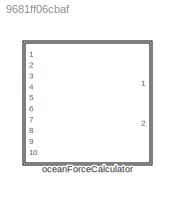
MODEL slx_9681ff06cbaf
KIND library
CONFIG AbsTol = auto
CONFIG EnableMultiTasking = off
CONFIG FixedStep = auto
CONFIG MaxStep = auto
CONFIG MinStep = auto
CONFIG RelTol = 1e-3
CONFIG SampleTimeConstraint = Unconstrained
CONFIG Solver = VariableStepAuto
CONFIG SolverName = VariableStepAuto
CONFIG StartTime = 0.0
CONFIG StopTime = 10.0
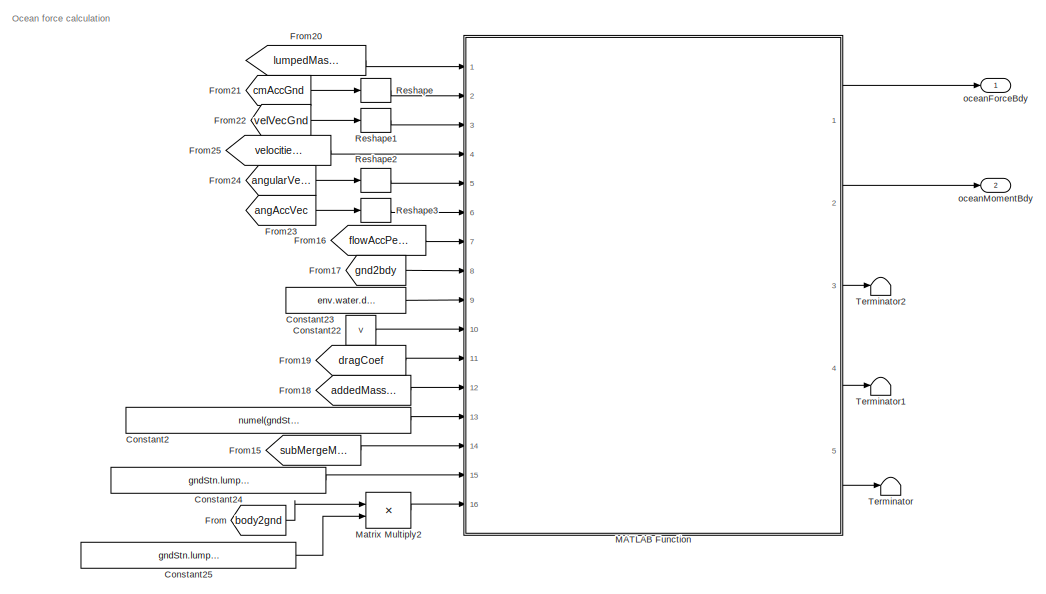
[diagram: oceanForceCalculator - part 1/3, top right region]
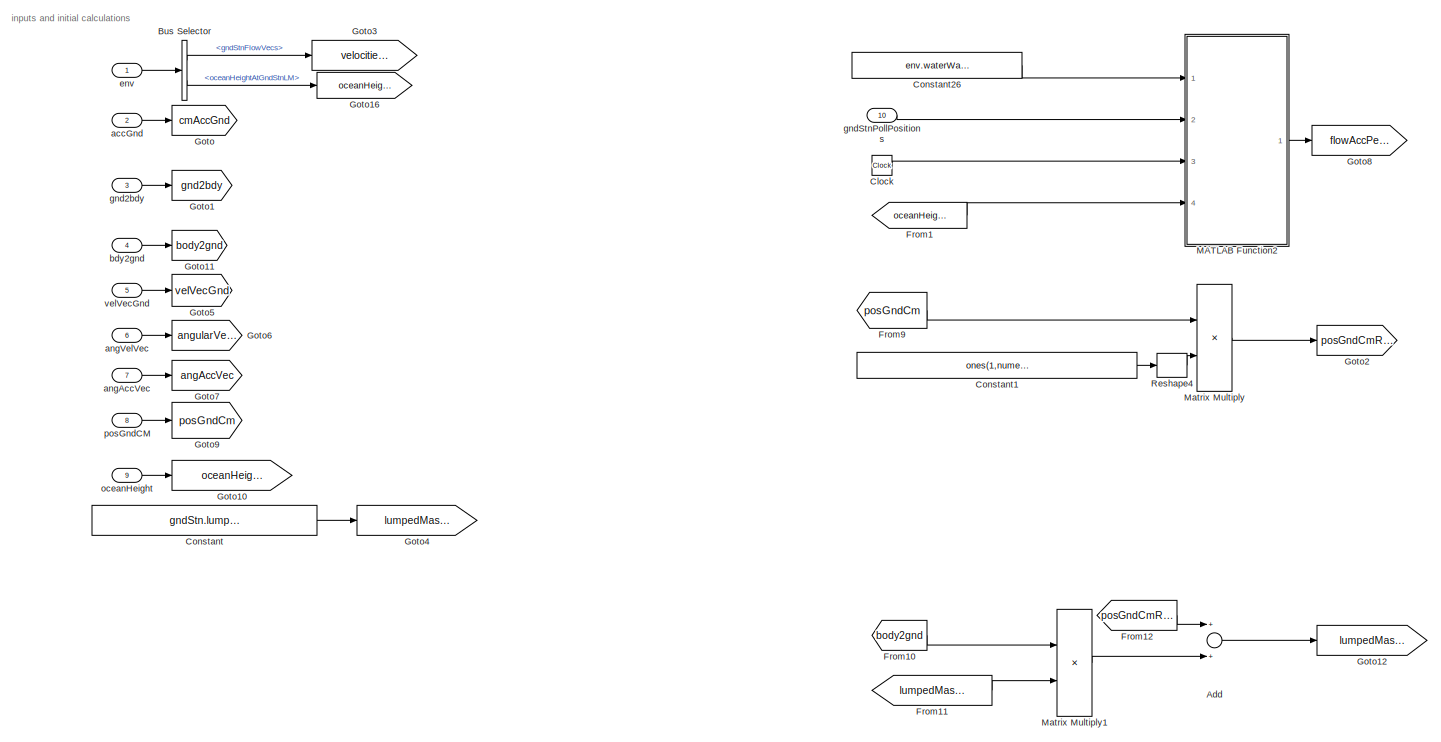
[diagram: oceanForceCalculator - part 2/3, middle left region]
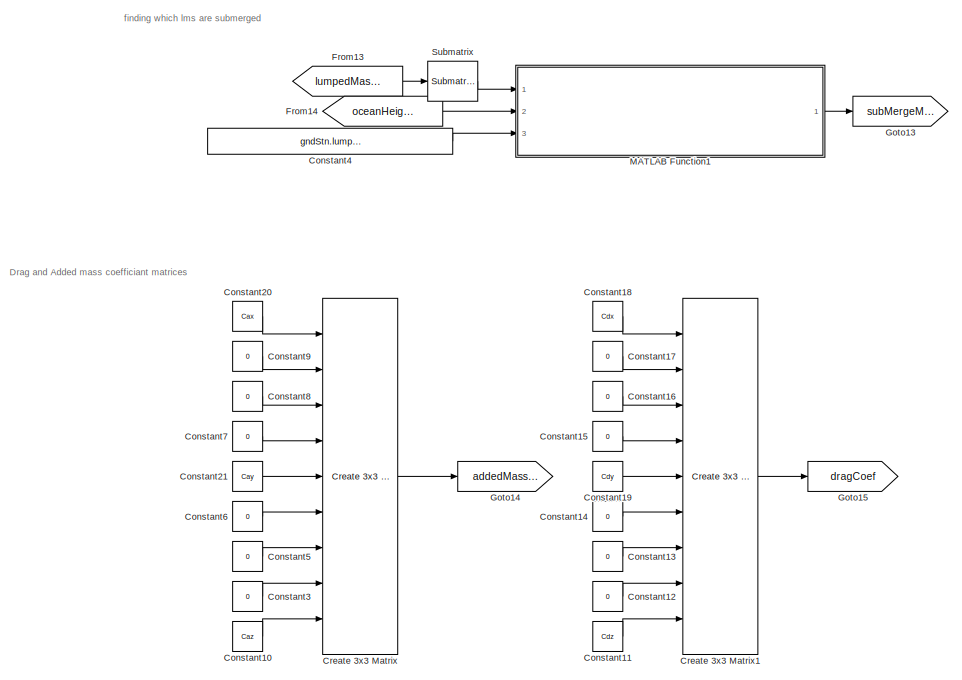
[diagram: oceanForceCalculator - part 3/3, bottom right region]
BLOCK [SubSystem] oceanForceCalculator
  Ports = [10, 2]
  RequestExecContextInheritance = off
BLOCK [Sum] oceanForceCalculator/Add
  InputSameDT = off
  OutDataTypeStr = Inherit: Inherit via internal rule
  Ports = [2, 1]
  SaturateOnIntegerOverflow = off
BLOCK [BusSelector] oceanForceCalculator/Bus Selector
  OutputAsBus = off
  OutputSignals = gndStnFlowVecs,oceanHeightAtGndStnLM
  Ports = [1, 2]
BLOCK [Clock] oceanForceCalculator/Clock
BLOCK [Constant] oceanForceCalculator/Constant
  Value = gndStn.lumpedMassPositionMatrixBdy.Value
BLOCK [Constant] oceanForceCalculator/Constant1
  Value = ones(1,numel(gndStn.lumpedMassPositionMatrixBdy.Value)/3)
BLOCK [Constant] oceanForceCalculator/Constant10
  Value = Caz
BLOCK [Constant] oceanForceCalculator/Constant11
  Value = Cdz
BLOCK [Constant] oceanForceCalculator/Constant12
  Value = 0
BLOCK [Constant] oceanForceCalculator/Constant13
  Value = 0
BLOCK [Constant] oceanForceCalculator/Constant14
  Value = 0
BLOCK [Constant] oceanForceCalculator/Constant15
  Value = 0
BLOCK [Constant] oceanForceCalculator/Constant16
  Value = 0
BLOCK [Constant] oceanForceCalculator/Constant17
  Value = 0
BLOCK [Constant] oceanForceCalculator/Constant18
  Value = Cdx
BLOCK [Constant] oceanForceCalculator/Constant19
  Value = Cdy
BLOCK [Constant] oceanForceCalculator/Constant2
  Value = numel(gndStn.lumpedMassPositionMatrixBdy.Value)/3
BLOCK [Constant] oceanForceCalculator/Constant20
  Value = Cax
BLOCK [Constant] oceanForceCalculator/Constant21
  Value = Cay
BLOCK [Constant] oceanForceCalculator/Constant22
  Value = V
BLOCK [Constant] oceanForceCalculator/Constant23
  Value = env.water.density.Value
BLOCK [Constant] oceanForceCalculator/Constant24
  Value = gndStn.lumpedMassAreaMat.Value
BLOCK [Constant] oceanForceCalculator/Constant25
  Value = gndStn.lumpedMassNormalVecMat.Value
BLOCK [Constant] oceanForceCalculator/Constant26
  Value = env.waterWave.waveParamMat.Value
BLOCK [Constant] oceanForceCalculator/Constant3
  Value = 0
BLOCK [Constant] oceanForceCalculator/Constant4
  Value = gndStn.lumpedMassSphereRadius.Value
BLOCK [Constant] oceanForceCalculator/Constant5
  Value = 0
BLOCK [Constant] oceanForceCalculator/Constant6
  Value = 0
BLOCK [Constant] oceanForceCalculator/Constant7
  Value = 0
BLOCK [Constant] oceanForceCalculator/Constant8
  Value = 0
BLOCK [Constant] oceanForceCalculator/Constant9
  Value = 0
BLOCK [Reference] oceanForceCalculator/Create 3x3 Matrix  REF=sharedutil/Create 3x3 Matrix
  Ports = [9, 1]
  SourceBlock = sharedutil/Create 3x3 Matrix
  SourceProductBaseCode = AE
  SourceProductName = Aerospace Blockset
  SourceType = Create 3x3 Matrix
BLOCK [Reference] oceanForceCalculator/Create 3x3 Matrix1  REF=sharedutil/Create 3x3 Matrix
  Ports = [9, 1]
  SourceBlock = sharedutil/Create 3x3 Matrix
  SourceProductBaseCode = AE
  SourceProductName = Aerospace Blockset
  SourceType = Create 3x3 Matrix
BLOCK [From] oceanForceCalculator/From
  GotoTag = body2gnd
BLOCK [From] oceanForceCalculator/From1
  GotoTag = oceanHeight
BLOCK [From] oceanForceCalculator/From10
  GotoTag = body2gnd
BLOCK [From] oceanForceCalculator/From11
  GotoTag = lumpedMassPosBdy
BLOCK [From] oceanForceCalculator/From12
  GotoTag = posGndCmRep
BLOCK [From] oceanForceCalculator/From13
  GotoTag = lumpedMassPosGnd
BLOCK [From] oceanForceCalculator/From14
  GotoTag = oceanHeightPosition
BLOCK [From] oceanForceCalculator/From15
  GotoTag = subMergeMat
BLOCK [From] oceanForceCalculator/From16
  GotoTag = flowAccPerLM
BLOCK [From] oceanForceCalculator/From17
  GotoTag = gnd2bdy
BLOCK [From] oceanForceCalculator/From18
  GotoTag = addedMassCoef
BLOCK [From] oceanForceCalculator/From19
  GotoTag = dragCoef
BLOCK [From] oceanForceCalculator/From20
  GotoTag = lumpedMassPosBdy
BLOCK [From] oceanForceCalculator/From21
  GotoTag = cmAccGnd
BLOCK [From] oceanForceCalculator/From22
  GotoTag = velVecGnd
BLOCK [From] oceanForceCalculator/From23
  GotoTag = angAccVec
BLOCK [From] oceanForceCalculator/From24
  GotoTag = angularVelVec
BLOCK [From] oceanForceCalculator/From25
  GotoTag = velocitiesEachLM
BLOCK [From] oceanForceCalculator/From9
  GotoTag = posGndCm
BLOCK [Goto] oceanForceCalculator/Goto
  GotoTag = cmAccGnd
BLOCK [Goto] oceanForceCalculator/Goto1
  GotoTag = gnd2bdy
BLOCK [Goto] oceanForceCalculator/Goto10
  GotoTag = oceanHeightPosition
BLOCK [Goto] oceanForceCalculator/Goto11
  GotoTag = body2gnd
BLOCK [Goto] oceanForceCalculator/Goto12
  GotoTag = lumpedMassPosGnd
BLOCK [Goto] oceanForceCalculator/Goto13
  GotoTag = subMergeMat
BLOCK [Goto] oceanForceCalculator/Goto14
  GotoTag = addedMassCoef
BLOCK [Goto] oceanForceCalculator/Goto15
  GotoTag = dragCoef
BLOCK [Goto] oceanForceCalculator/Goto16
  GotoTag = oceanHeight
BLOCK [Goto] oceanForceCalculator/Goto2
  GotoTag = posGndCmRep
BLOCK [Goto] oceanForceCalculator/Goto3
  GotoTag = velocitiesEachLM
BLOCK [Goto] oceanForceCalculator/Goto4
  GotoTag = lumpedMassPosBdy
BLOCK [Goto] oceanForceCalculator/Goto5
  GotoTag = velVecGnd
BLOCK [Goto] oceanForceCalculator/Goto6
  GotoTag = angularVelVec
BLOCK [Goto] oceanForceCalculator/Goto7
  GotoTag = angAccVec
BLOCK [Goto] oceanForceCalculator/Goto8
  GotoTag = flowAccPerLM
BLOCK [Goto] oceanForceCalculator/Goto9
  GotoTag = posGndCm
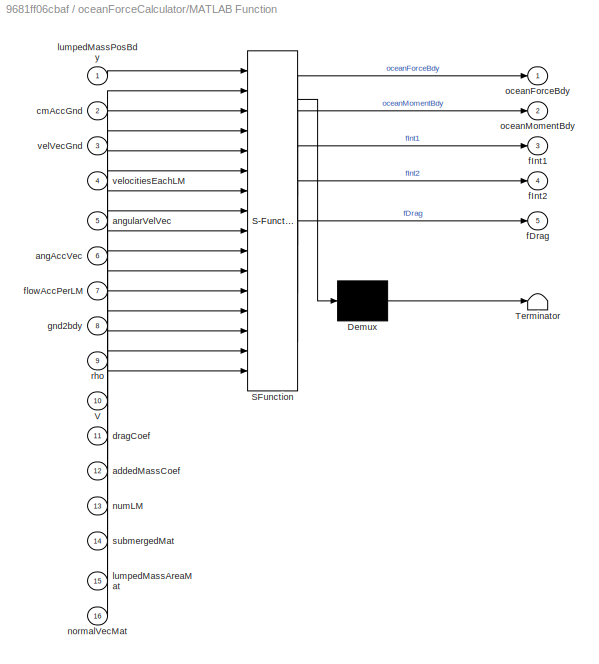
BLOCK [SubSystem] oceanForceCalculator/MATLAB Function
  ErrorFcn = Stateflow.Translate.translate
  PermitHierarchicalResolution = ExplicitOnly
  Ports = [16, 5]
  RequestExecContextInheritance = off
  SFBlockType = MATLAB Function
  TreatAsAtomicUnit = on
BLOCK [Demux] oceanForceCalculator/MATLAB Function/ Demux 
  Outputs = 1
  Ports = [1, 1]
BLOCK [S-Function] oceanForceCalculator/MATLAB Function/ SFunction 
  EnableBusSupport = off
  FunctionName = sf_sfun
  PortCounts = [16 6]
  Ports = [16, 6]
  SFcnIsStateOwnerBlock = off
  SFunctionDeploymentMode = off
  Tag = Stateflow S-Function oceanForceCalculator_ul 2
BLOCK [Terminator] oceanForceCalculator/MATLAB Function/ Terminator 
BLOCK [Inport] oceanForceCalculator/MATLAB Function/V
  IconDisplay = Port number
  Port = 10
BLOCK [Inport] oceanForceCalculator/MATLAB Function/addedMassCoef
  IconDisplay = Port number
  Port = 12
BLOCK [Inport] oceanForceCalculator/MATLAB Function/angAccVec
  IconDisplay = Port number
  Port = 6
BLOCK [Inport] oceanForceCalculator/MATLAB Function/angularVelVec
  IconDisplay = Port number
  Port = 5
BLOCK [Inport] oceanForceCalculator/MATLAB Function/cmAccGnd
  IconDisplay = Port number
  Port = 2
BLOCK [Inport] oceanForceCalculator/MATLAB Function/dragCoef
  IconDisplay = Port number
  Port = 11
BLOCK [Outport] oceanForceCalculator/MATLAB Function/fDrag
  IconDisplay = Port number
  Port = 5
BLOCK [Outport] oceanForceCalculator/MATLAB Function/fInt1
  IconDisplay = Port number
  Port = 3
BLOCK [Outport] oceanForceCalculator/MATLAB Function/fInt2
  IconDisplay = Port number
  Port = 4
BLOCK [Inport] oceanForceCalculator/MATLAB Function/flowAccPerLM
  IconDisplay = Port number
  Port = 7
BLOCK [Inport] oceanForceCalculator/MATLAB Function/gnd2bdy
  IconDisplay = Port number
  Port = 8
BLOCK [Inport] oceanForceCalculator/MATLAB Function/lumpedMassAreaMat
  IconDisplay = Port number
  Port = 15
BLOCK [Inport] oceanForceCalculator/MATLAB Function/lumpedMassPosBdy
  IconDisplay = Port number
BLOCK [Inport] oceanForceCalculator/MATLAB Function/normalVecMat
  IconDisplay = Port number
  Port = 16
BLOCK [Inport] oceanForceCalculator/MATLAB Function/numLM
  IconDisplay = Port number
  Port = 13
BLOCK [Outport] oceanForceCalculator/MATLAB Function/oceanForceBdy
  IconDisplay = Port number
BLOCK [Outport] oceanForceCalculator/MATLAB Function/oceanMomentBdy
  IconDisplay = Port number
  Port = 2
BLOCK [Inport] oceanForceCalculator/MATLAB Function/rho
  IconDisplay = Port number
  Port = 9
BLOCK [Inport] oceanForceCalculator/MATLAB Function/submergedMat
  IconDisplay = Port number
  Port = 14
BLOCK [Inport] oceanForceCalculator/MATLAB Function/velVecGnd
  IconDisplay = Port number
  Port = 3
BLOCK [Inport] oceanForceCalculator/MATLAB Function/velocitiesEachLM
  IconDisplay = Port number
  Port = 4
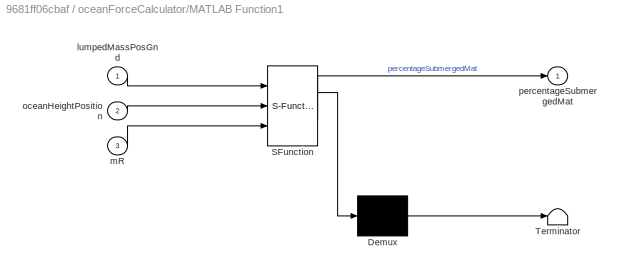
BLOCK [SubSystem] oceanForceCalculator/MATLAB Function1
  ErrorFcn = Stateflow.Translate.translate
  PermitHierarchicalResolution = ExplicitOnly
  Ports = [3, 1]
  RequestExecContextInheritance = off
  SFBlockType = MATLAB Function
  TreatAsAtomicUnit = on
BLOCK [Demux] oceanForceCalculator/MATLAB Function1/ Demux 
  Outputs = 1
  Ports = [1, 1]
BLOCK [S-Function] oceanForceCalculator/MATLAB Function1/ SFunction 
  EnableBusSupport = off
  FunctionName = sf_sfun
  PortCounts = [3 2]
  Ports = [3, 2]
  SFcnIsStateOwnerBlock = off
  SFunctionDeploymentMode = off
  Tag = Stateflow S-Function oceanForceCalculator_ul 1
BLOCK [Terminator] oceanForceCalculator/MATLAB Function1/ Terminator 
BLOCK [Inport] oceanForceCalculator/MATLAB Function1/lumpedMassPosGnd
  IconDisplay = Port number
BLOCK [Inport] oceanForceCalculator/MATLAB Function1/mR
  IconDisplay = Port number
  Port = 3
BLOCK [Inport] oceanForceCalculator/MATLAB Function1/oceanHeightPosition
  IconDisplay = Port number
  Port = 2
BLOCK [Outport] oceanForceCalculator/MATLAB Function1/percentageSubmergedMat
  IconDisplay = Port number
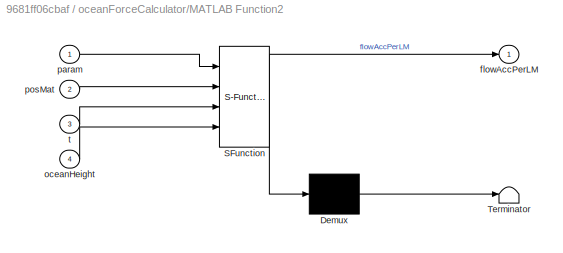
BLOCK [SubSystem] oceanForceCalculator/MATLAB Function2
  ErrorFcn = Stateflow.Translate.translate
  PermitHierarchicalResolution = ExplicitOnly
  Ports = [4, 1]
  RequestExecContextInheritance = off
  SFBlockType = MATLAB Function
  TreatAsAtomicUnit = on
BLOCK [Demux] oceanForceCalculator/MATLAB Function2/ Demux 
  Outputs = 1
  Ports = [1, 1]
BLOCK [S-Function] oceanForceCalculator/MATLAB Function2/ SFunction 
  EnableBusSupport = off
  FunctionName = sf_sfun
  PortCounts = [4 2]
  Ports = [4, 2]
  SFcnIsStateOwnerBlock = off
  SFunctionDeploymentMode = off
  Tag = Stateflow S-Function oceanForceCalculator_ul 3
BLOCK [Terminator] oceanForceCalculator/MATLAB Function2/ Terminator 
BLOCK [Outport] oceanForceCalculator/MATLAB Function2/flowAccPerLM
  IconDisplay = Port number
BLOCK [Inport] oceanForceCalculator/MATLAB Function2/oceanHeight
  IconDisplay = Port number
  Port = 4
BLOCK [Inport] oceanForceCalculator/MATLAB Function2/param
  IconDisplay = Port number
BLOCK [Inport] oceanForceCalculator/MATLAB Function2/posMat
  IconDisplay = Port number
  Port = 2
BLOCK [Inport] oceanForceCalculator/MATLAB Function2/t
  IconDisplay = Port number
  Port = 3
BLOCK [Product] oceanForceCalculator/Matrix Multiply
  InputSameDT = off
  Multiplication = Matrix(*)
  OutDataTypeStr = Inherit: Inherit via internal rule
  Ports = [2, 1]
  RndMeth = Floor
  SaturateOnIntegerOverflow = off
BLOCK [Product] oceanForceCalculator/Matrix Multiply1
  InputSameDT = off
  Multiplication = Matrix(*)
  OutDataTypeStr = Inherit: Inherit via internal rule
  Ports = [2, 1]
  RndMeth = Floor
  SaturateOnIntegerOverflow = off
BLOCK [Product] oceanForceCalculator/Matrix Multiply2
  InputSameDT = off
  Multiplication = Matrix(*)
  OutDataTypeStr = Inherit: Inherit via internal rule
  Ports = [2, 1]
  RndMeth = Floor
  SaturateOnIntegerOverflow = off
BLOCK [Reshape] oceanForceCalculator/Reshape
  OutputDimensionality = Column vector (2-D)
  Ports = [1, 1]
BLOCK [Reshape] oceanForceCalculator/Reshape1
  OutputDimensionality = Column vector (2-D)
  Ports = [1, 1]
BLOCK [Reshape] oceanForceCalculator/Reshape2
  OutputDimensionality = Column vector (2-D)
  Ports = [1, 1]
BLOCK [Reshape] oceanForceCalculator/Reshape3
  OutputDimensionality = Column vector (2-D)
  Ports = [1, 1]
BLOCK [Reshape] oceanForceCalculator/Reshape4
  OutputDimensionality = Row vector (2-D)
  Ports = [1, 1]
BLOCK [Reference] oceanForceCalculator/Submatrix  REF=dspmtrx3/Submatrix
  Ports = [1, 1]
  SourceBlock = dspmtrx3/Submatrix
  SourceProductBaseCode = DS
  SourceProductName = DSP System Toolbox
  SourceType = Submatrix
BLOCK [Terminator] oceanForceCalculator/Terminator
BLOCK [Terminator] oceanForceCalculator/Terminator1
BLOCK [Terminator] oceanForceCalculator/Terminator2
BLOCK [Inport] oceanForceCalculator/accGnd
  IconDisplay = Port number
  Port = 2
BLOCK [Inport] oceanForceCalculator/angAccVec
  IconDisplay = Port number
  Port = 7
BLOCK [Inport] oceanForceCalculator/angVelVec
  IconDisplay = Port number
  Port = 6
BLOCK [Inport] oceanForceCalculator/bdy2gnd
  IconDisplay = Port number
  Port = 4
BLOCK [Inport] oceanForceCalculator/env
  IconDisplay = Port number
BLOCK [Inport] oceanForceCalculator/gnd2bdy
  IconDisplay = Port number
  Port = 3
BLOCK [Inport] oceanForceCalculator/gndStnPollPositions
  IconDisplay = Port number
  Port = 10
BLOCK [Outport] oceanForceCalculator/oceanForceBdy
  IconDisplay = Port number
BLOCK [Inport] oceanForceCalculator/oceanHeight
  IconDisplay = Port number
  Port = 9
BLOCK [Outport] oceanForceCalculator/oceanMomentBdy
  IconDisplay = Port number
  Port = 2
BLOCK [Inport] oceanForceCalculator/posGndCM
  IconDisplay = Port number
  Port = 8
BLOCK [Inport] oceanForceCalculator/velVecGnd
  IconDisplay = Port number
  Port = 5
ANNOTATION oceanForceCalculator: Drag and Added mass coefficiant matrices
ANNOTATION oceanForceCalculator: Ocean force calculation
ANNOTATION oceanForceCalculator: finding which lms are submerged
ANNOTATION oceanForceCalculator: inputs and initial calculations
LINE oceanForceCalculator/Add:1 -> oceanForceCalculator/Goto12:1
LINE oceanForceCalculator/Bus Selector:1 -> oceanForceCalculator/Goto3:1
LINE oceanForceCalculator/Bus Selector:2 -> oceanForceCalculator/Goto16:1
LINE oceanForceCalculator/Clock:1 -> oceanForceCalculator/MATLAB Function2:3
LINE oceanForceCalculator/Constant10:1 -> oceanForceCalculator/Create 3x3 Matrix:9
LINE oceanForceCalculator/Constant11:1 -> oceanForceCalculator/Create 3x3 Matrix1:9
LINE oceanForceCalculator/Constant12:1 -> oceanForceCalculator/Create 3x3 Matrix1:8
LINE oceanForceCalculator/Constant13:1 -> oceanForceCalculator/Create 3x3 Matrix1:7
LINE oceanForceCalculator/Constant14:1 -> oceanForceCalculator/Create 3x3 Matrix1:6
LINE oceanForceCalculator/Constant15:1 -> oceanForceCalculator/Create 3x3 Matrix1:4
LINE oceanForceCalculator/Constant16:1 -> oceanForceCalculator/Create 3x3 Matrix1:3
LINE oceanForceCalculator/Constant17:1 -> oceanForceCalculator/Create 3x3 Matrix1:2
LINE oceanForceCalculator/Constant18:1 -> oceanForceCalculator/Create 3x3 Matrix1:1
LINE oceanForceCalculator/Constant19:1 -> oceanForceCalculator/Create 3x3 Matrix1:5
LINE oceanForceCalculator/Constant1:1 -> oceanForceCalculator/Reshape4:1
LINE oceanForceCalculator/Constant20:1 -> oceanForceCalculator/Create 3x3 Matrix:1
LINE oceanForceCalculator/Constant21:1 -> oceanForceCalculator/Create 3x3 Matrix:5
LINE oceanForceCalculator/Constant22:1 -> oceanForceCalculator/MATLAB Function:10
LINE oceanForceCalculator/Constant23:1 -> oceanForceCalculator/MATLAB Function:9
LINE oceanForceCalculator/Constant24:1 -> oceanForceCalculator/MATLAB Function:15
LINE oceanForceCalculator/Constant25:1 -> oceanForceCalculator/Matrix Multiply2:2
LINE oceanForceCalculator/Constant26:1 -> oceanForceCalculator/MATLAB Function2:1
LINE oceanForceCalculator/Constant2:1 -> oceanForceCalculator/MATLAB Function:13
LINE oceanForceCalculator/Constant3:1 -> oceanForceCalculator/Create 3x3 Matrix:8
LINE oceanForceCalculator/Constant4:1 -> oceanForceCalculator/MATLAB Function1:3
LINE oceanForceCalculator/Constant5:1 -> oceanForceCalculator/Create 3x3 Matrix:7
LINE oceanForceCalculator/Constant6:1 -> oceanForceCalculator/Create 3x3 Matrix:6
LINE oceanForceCalculator/Constant7:1 -> oceanForceCalculator/Create 3x3 Matrix:4
LINE oceanForceCalculator/Constant8:1 -> oceanForceCalculator/Create 3x3 Matrix:3
LINE oceanForceCalculator/Constant9:1 -> oceanForceCalculator/Create 3x3 Matrix:2
LINE oceanForceCalculator/Constant:1 -> oceanForceCalculator/Goto4:1
LINE oceanForceCalculator/Create 3x3 Matrix1:1 -> oceanForceCalculator/Goto15:1
LINE oceanForceCalculator/Create 3x3 Matrix:1 -> oceanForceCalculator/Goto14:1
LINE oceanForceCalculator/From10:1 -> oceanForceCalculator/Matrix Multiply1:1
LINE oceanForceCalculator/From11:1 -> oceanForceCalculator/Matrix Multiply1:2
LINE oceanForceCalculator/From12:1 -> oceanForceCalculator/Add:1
LINE oceanForceCalculator/From13:1 -> oceanForceCalculator/Submatrix:1
LINE oceanForceCalculator/From14:1 -> oceanForceCalculator/MATLAB Function1:2
LINE oceanForceCalculator/From15:1 -> oceanForceCalculator/MATLAB Function:14
LINE oceanForceCalculator/From16:1 -> oceanForceCalculator/MATLAB Function:7
LINE oceanForceCalculator/From17:1 -> oceanForceCalculator/MATLAB Function:8
LINE oceanForceCalculator/From18:1 -> oceanForceCalculator/MATLAB Function:12
LINE oceanForceCalculator/From19:1 -> oceanForceCalculator/MATLAB Function:11
LINE oceanForceCalculator/From1:1 -> oceanForceCalculator/MATLAB Function2:4
LINE oceanForceCalculator/From20:1 -> oceanForceCalculator/MATLAB Function:1
LINE oceanForceCalculator/From21:1 -> oceanForceCalculator/Reshape:1
LINE oceanForceCalculator/From22:1 -> oceanForceCalculator/Reshape1:1
LINE oceanForceCalculator/From23:1 -> oceanForceCalculator/Reshape3:1
LINE oceanForceCalculator/From24:1 -> oceanForceCalculator/Reshape2:1
LINE oceanForceCalculator/From25:1 -> oceanForceCalculator/MATLAB Function:4
LINE oceanForceCalculator/From9:1 -> oceanForceCalculator/Matrix Multiply:1
LINE oceanForceCalculator/From:1 -> oceanForceCalculator/Matrix Multiply2:1
LINE oceanForceCalculator/MATLAB Function1:1 -> oceanForceCalculator/Goto13:1
LINE oceanForceCalculator/MATLAB Function2:1 -> oceanForceCalculator/Goto8:1
LINE oceanForceCalculator/MATLAB Function:1 -> oceanForceCalculator/oceanForceBdy:1
LINE oceanForceCalculator/MATLAB Function:2 -> oceanForceCalculator/oceanMomentBdy:1
LINE oceanForceCalculator/MATLAB Function:3 -> oceanForceCalculator/Terminator2:1
LINE oceanForceCalculator/MATLAB Function:4 -> oceanForceCalculator/Terminator1:1
LINE oceanForceCalculator/MATLAB Function:5 -> oceanForceCalculator/Terminator:1
LINE oceanForceCalculator/Matrix Multiply1:1 -> oceanForceCalculator/Add:2
LINE oceanForceCalculator/Matrix Multiply2:1 -> oceanForceCalculator/MATLAB Function:16
LINE oceanForceCalculator/Matrix Multiply:1 -> oceanForceCalculator/Goto2:1
LINE oceanForceCalculator/Reshape1:1 -> oceanForceCalculator/MATLAB Function:3
LINE oceanForceCalculator/Reshape2:1 -> oceanForceCalculator/MATLAB Function:5
LINE oceanForceCalculator/Reshape3:1 -> oceanForceCalculator/MATLAB Function:6
LINE oceanForceCalculator/Reshape4:1 -> oceanForceCalculator/Matrix Multiply:2
LINE oceanForceCalculator/Reshape:1 -> oceanForceCalculator/MATLAB Function:2
LINE oceanForceCalculator/Submatrix:1 -> oceanForceCalculator/MATLAB Function1:1
LINE oceanForceCalculator/accGnd:1 -> oceanForceCalculator/Goto:1
LINE oceanForceCalculator/angAccVec:1 -> oceanForceCalculator/Goto7:1
LINE oceanForceCalculator/angVelVec:1 -> oceanForceCalculator/Goto6:1
LINE oceanForceCalculator/bdy2gnd:1 -> oceanForceCalculator/Goto11:1
LINE oceanForceCalculator/env:1 -> oceanForceCalculator/Bus Selector:1
LINE oceanForceCalculator/gnd2bdy:1 -> oceanForceCalculator/Goto1:1
LINE oceanForceCalculator/gndStnPollPositions:1 -> oceanForceCalculator/MATLAB Function2:2
LINE oceanForceCalculator/oceanHeight:1 -> oceanForceCalculator/Goto10:1
LINE oceanForceCalculator/posGndCM:1 -> oceanForceCalculator/Goto9:1
LINE oceanForceCalculator/velVecGnd:1 -> oceanForceCalculator/Goto5:1
CHART oceanForceCalculator/MATLAB Function1 states=1 transitions=1
  STATE_LABEL 'eML_blk_kernel()'
  STATE_LABEL 'SCRIPT:\nfunction percentageSubmergedMat  = fcn(lumpedMassPosGnd,oceanHeightPosition,mR)\n\n%lumped Mass pos gnd is 3 by number of lumped masses\n\nsz = size(lumpedMassPosGnd);\npercentageSubmergedMat = zeros(1,sz(2));\nmatCat = [];\n\nfor i = sz(2):-1:1\n    \n    dist2surf = oceanHeightPosition(i) - lumpedMassPosGnd(:,i);\n   \n    \n    \n    if dist2surf >= mR\n        \n        percentSub = 1;\n    elseif dist...<+221ch>'
CHART oceanForceCalculator/MATLAB Function states=1 transitions=1
  STATE_LABEL 'eML_blk_kernel()'
  STATE_LABEL 'SCRIPT:\nfunction [oceanForceBdy,oceanMomentBdy,fInt1,fInt2,fDrag] = fcn(lumpedMassPosBdy,cmAccGnd,velVecGnd,velocitiesEachLM,angularVelVec,angAccVec,...\n    flowAccPerLM,gnd2bdy,rho,V,dragCoef,addedMassCoef,numLM,submergedMat,lumpedMassAreaMat,normalVecMat)\n\n\n\n\n\n% [oceanForceBdy,oceanMomentBdy] = oceanForceFunct(lumpedMassPosBdy,cmAccGnd,velVecGnd,velocitiesEachLM,...\n%     angularVelVec,angAccVec...<+1626ch>'
CHART oceanForceCalculator/MATLAB Function2 states=1 transitions=1
  STATE_LABEL 'eML_blk_kernel()'
  STATE_LABEL "SCRIPT:\nfunction flowAccPerLM = fcn(param, posMat, t,oceanHeight)\n\nposMat = posMat - [zeros(1,size(posMat,2));zeros(1,size(posMat,2));oceanHeight'];\nuDot   = zeros(1,size(posMat,2));\nvDot   = zeros(1,size(posMat,2));\n\nfor i = 1:size(posMat,2)\n    uDot(1,i) = sum( param(:,3).*exp(param(:,1).*posMat(3,i)).*(param(:,2).^2).*sin(param(:,1).*posMat(1,i) - t.*param(:,2)+ param(:,4)),1);\n    \n    vDot(1,...<+194ch>"
